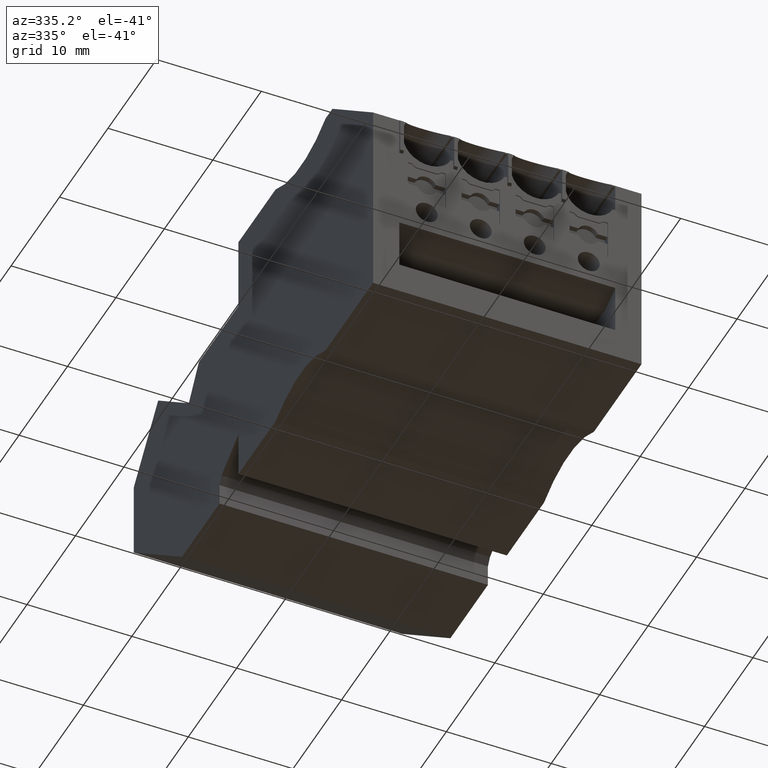
[diagram: clean part render]
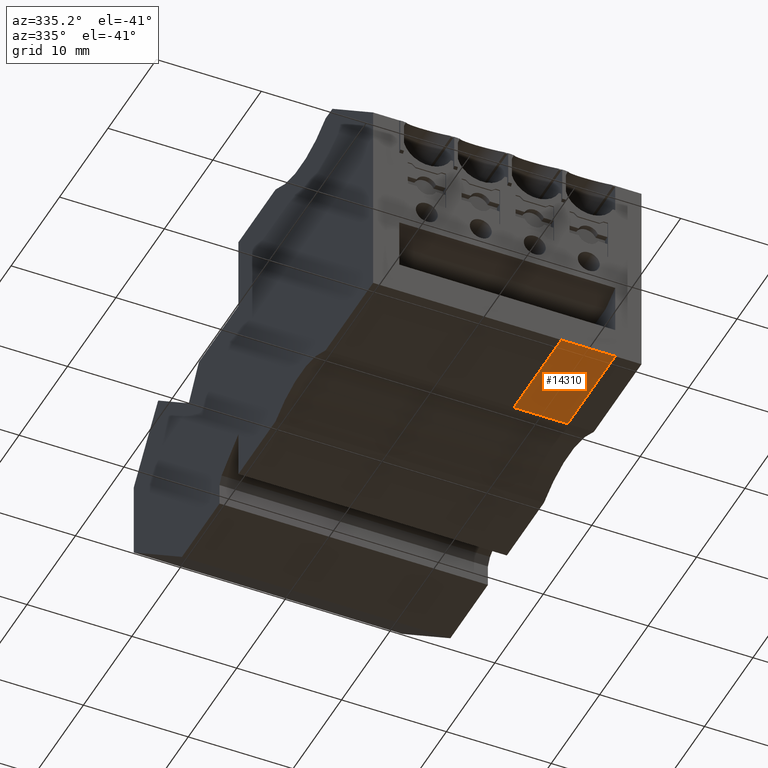
[diagram: same view with one face highlighted and labeled with its STEP entity id]
A machine part, auxiliary view. The second image highlights one B-rep face of the part: STEP entity #14310.
In plain terms, the highlighted planar face has unit normal (0, 0, -1).
Its self-contained STEP definition (entity closure, byte-faithful):
#10040=CARTESIAN_POINT('',(432.124069232021,670.934347625639,
68.1199999950703));
#10050=DIRECTION('',(-1.20456572490157E-9,-1.,5.82229711732946E-10));
#10060=DIRECTION('',(1.,-1.20456572494379E-9,-7.2511997674725E-11));
#10070=AXIS2_PLACEMENT_3D('',#10040,#10050,#10060);
#10080=PLANE('',#10070);
#10090=CARTESIAN_POINT('',(420.453158743445,670.93434764981,
88.7199999942416));
#10100=DIRECTION('',(1.11377720129513E-10,5.56333266435468E-10,1.));
#10110=VECTOR('',#10100,1.);
#10120=LINE('',#10090,#10110);
#10270=CARTESIAN_POINT('',(430.260883772267,670.934347639395,
93.8699999926897));
#10280=DIRECTION('',(1.66699210889915E-10,4.90742846146349E-10,1.));
#10290=VECTOR('',#10280,1.);
#10300=LINE('',#10270,#10290);
#14050=CARTESIAN_POINT('',(420.453158742871,670.934347648692,
83.5700000003877));
#14060=VERTEX_POINT('',#14050);
#14070=CARTESIAN_POINT('',(420.453158728087,670.934347651691,
88.7199999972041));
#14080=VERTEX_POINT('',#14070);
#14090=EDGE_CURVE('',#14060,#14080,#10120,.T.);
#14100=ORIENTED_EDGE('',*,*,#14090,.F.);
#14110=CARTESIAN_POINT('',(432.8689024941,670.934347636735,
88.7199999951344));
#14120=DIRECTION('',(1.,-1.20456561392153E-9,-1.66699003060571E-10));
#14130=VECTOR('',#14120,1.);
#14140=LINE('',#14110,#14130);
#14150=CARTESIAN_POINT('',(430.260883742499,670.934347639877,
88.7199999955692));
#14160=VERTEX_POINT('',#14150);
#14170=EDGE_CURVE('',#14080,#14160,#14140,.T.);
#14180=ORIENTED_EDGE('',*,*,#14170,.F.);
#14190=CARTESIAN_POINT('',(430.260883755086,670.934347662516,
83.5700000008727));
#14200=VERTEX_POINT('',#14190);
#14210=EDGE_CURVE('',#14200,#14160,#10300,.T.);
#14220=ORIENTED_EDGE('',*,*,#14210,.T.);
#14230=CARTESIAN_POINT('',(435.968902533561,670.934347630003,
83.5699999991584));
#14240=DIRECTION('',(-1.,1.20456572494379E-9,7.92260575924475E-11));
#14250=VECTOR('',#14240,1.);
#14260=LINE('',#14230,#14250);
#14270=EDGE_CURVE('',#14200,#14060,#14260,.T.);
#14280=ORIENTED_EDGE('',*,*,#14270,.F.);
#14290=EDGE_LOOP('',(#14280,#14220,#14180,#14100));
#14300=FACE_OUTER_BOUND('',#14290,.T.);
#14310=ADVANCED_FACE('',(#14300),#10080,.T.);